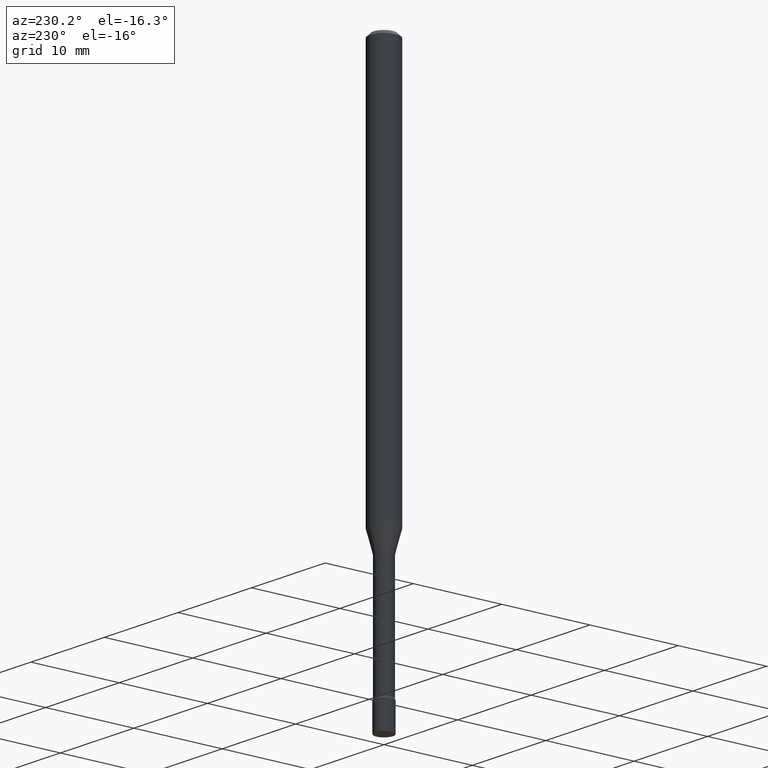
[diagram: clean part render]
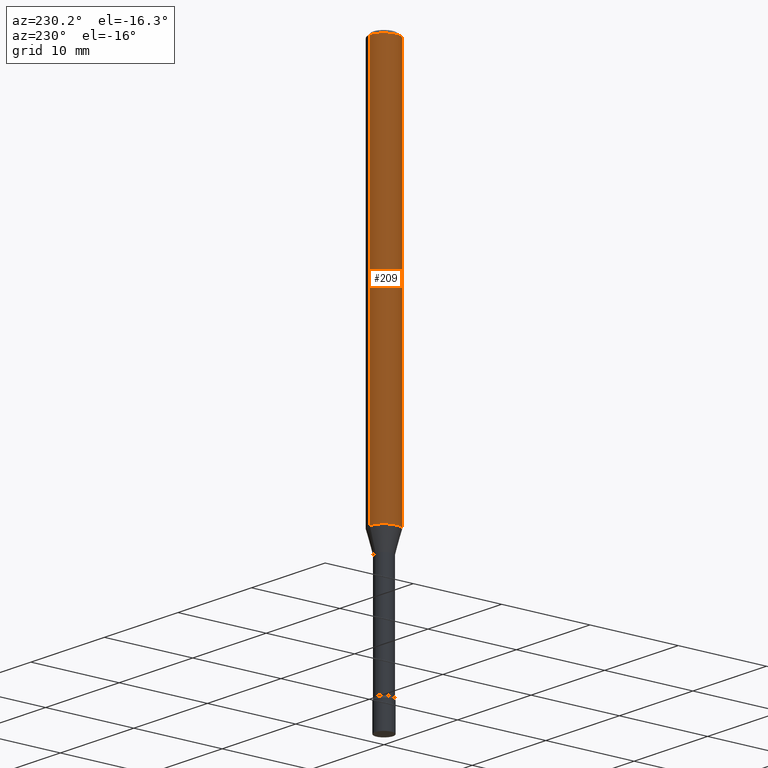
[diagram: same view with one face highlighted and labeled with its STEP entity id]
A machine part, auxiliary view. The second image highlights one B-rep face of the part: STEP entity #209.
In plain terms, the highlighted cylindrical surface (edge-blend (fillet) strip) has radius 1.5875 mm, axis along (-0, 0, 1).
Its self-contained STEP definition (entity closure, byte-faithful):
#1 = LINE ( 'NONE', #372, #424 ) ;
#7 = EDGE_CURVE ( 'NONE', #11, #342, #232, .T. ) ;
#11 = VERTEX_POINT ( 'NONE', #240 ) ;
#21 = DIRECTION ( 'NONE',  ( -2.445487859236075809E-29, 3.491454053789768278E-15, 1.000000000000000000 ) ) ;
#36 = CARTESIAN_POINT ( 'NONE',  ( 4.321352963174050504E-29, -6.169650470415179361E-15, -1.767071934891535134 ) ) ;
#48 = DIRECTION ( 'NONE',  ( -6.982962677686265922E-15, -1.000000000000000000, 4.370956789862821150E-15 ) ) ;
#88 = DIRECTION ( 'NONE',  ( -2.445487859236075809E-29, 3.491454053789768278E-15, 1.000000000000000000 ) ) ;
#89 = EDGE_CURVE ( 'NONE', #159, #122, #197, .T. ) ;
#116 = AXIS2_PLACEMENT_3D ( 'NONE', #196, #511, #388 ) ;
#122 = VERTEX_POINT ( 'NONE', #451 ) ;
#133 = AXIS2_PLACEMENT_3D ( 'NONE', #137, #21, #185 ) ;
#137 = CARTESIAN_POINT ( 'NONE',  ( 0.000000000000000000, 0.000000000000000000, 0.000000000000000000 ) ) ;
#140 = FACE_OUTER_BOUND ( 'NONE', #379, .T. ) ;
#157 = ORIENTED_EDGE ( 'NONE', *, *, #89, .T. ) ;
#159 = VERTEX_POINT ( 'NONE', #376 ) ;
#176 = CARTESIAN_POINT ( 'NONE',  ( 4.440892098500625669E-16, 0.06250000000000000000, -2.182158783618605173E-16 ) ) ;
#185 = DIRECTION ( 'NONE',  ( -6.982962677686265922E-15, -1.000000000000000000, 3.491454053789768278E-15 ) ) ;
#196 = CARTESIAN_POINT ( 'NONE',  ( 3.668231788854121000E-31, -5.237181080684662746E-17, -0.01500000000000003067 ) ) ;
#197 = CIRCLE ( 'NONE', #519, 0.06250000000000000000 ) ;
#200 = EDGE_CURVE ( 'NONE', #159, #11, #339, .T. ) ;
#209 = ADVANCED_FACE ( 'NONE', ( #140 ), #493, .T. ) ;
#224 = VECTOR ( 'NONE', #341, 39.37007874015748143 ) ;
#232 = CIRCLE ( 'NONE', #116, 0.06250000000000000000 ) ;
#240 = CARTESIAN_POINT ( 'NONE',  ( 4.440892098501060035E-16, 0.06249999999999995143, -0.01500000000000024751 ) ) ;
#282 = CARTESIAN_POINT ( 'NONE',  ( -4.364351673553912750E-16, -0.06250000000000005551, -0.01499999999999981209 ) ) ;
#309 = ORIENTED_EDGE ( 'NONE', *, *, #7, .F. ) ;
#337 = ORIENTED_EDGE ( 'NONE', *, *, #200, .F. ) ;
#339 = LINE ( 'NONE', #176, #224 ) ;
#341 = DIRECTION ( 'NONE',  ( -2.445487859236075809E-29, 3.491454053789768278E-15, 1.000000000000000000 ) ) ;
#342 = VERTEX_POINT ( 'NONE', #282 ) ;
#372 = CARTESIAN_POINT ( 'NONE',  ( -4.364351673553916201E-16, -0.06250000000000000000, 2.182158783618605173E-16 ) ) ;
#376 = CARTESIAN_POINT ( 'NONE',  ( 4.440892098501054119E-16, 0.06249999999999378969, -1.767071934891535356 ) ) ;
#379 = EDGE_LOOP ( 'NONE', ( #337, #157, #509, #309 ) ) ;
#388 = DIRECTION ( 'NONE',  ( -6.982962677686265922E-15, -1.000000000000000000, 3.483106191921935554E-15 ) ) ;
#397 = EDGE_CURVE ( 'NONE', #122, #342, #1, .T. ) ;
#424 = VECTOR ( 'NONE', #88, 39.37007874015748143 ) ;
#451 = CARTESIAN_POINT ( 'NONE',  ( -4.364351673553487258E-16, -0.06250000000000620337, -1.767071934891534912 ) ) ;
#478 = DIRECTION ( 'NONE',  ( -2.445487859236075809E-29, 3.491454053789768278E-15, 1.000000000000000000 ) ) ;
#493 = CYLINDRICAL_SURFACE ( 'NONE', #133, 0.06250000000000000000 ) ;
#509 = ORIENTED_EDGE ( 'NONE', *, *, #397, .T. ) ;
#511 = DIRECTION ( 'NONE',  ( -2.445487859236075809E-29, 3.491454053789768278E-15, 1.000000000000000000 ) ) ;
#519 = AXIS2_PLACEMENT_3D ( 'NONE', #36, #478, #48 ) ;